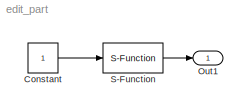
MODEL edit_part
KIND model
BLOCK [Constant] Constant
  SID = 1
BLOCK [Outport] Out1
  SID = 3
BLOCK [S-Function] S-Function
  EnableBusSupport = off
  FunctionName = ref3
  Parameters = get_ref_part
  Ports = [1, 1]
  SFcnIsStateOwnerBlock = off
  SFunctionDeploymentMode = off
  SID = 2
LINE Constant:1 -> S-Function:1
LINE S-Function:1 -> Out1:1
